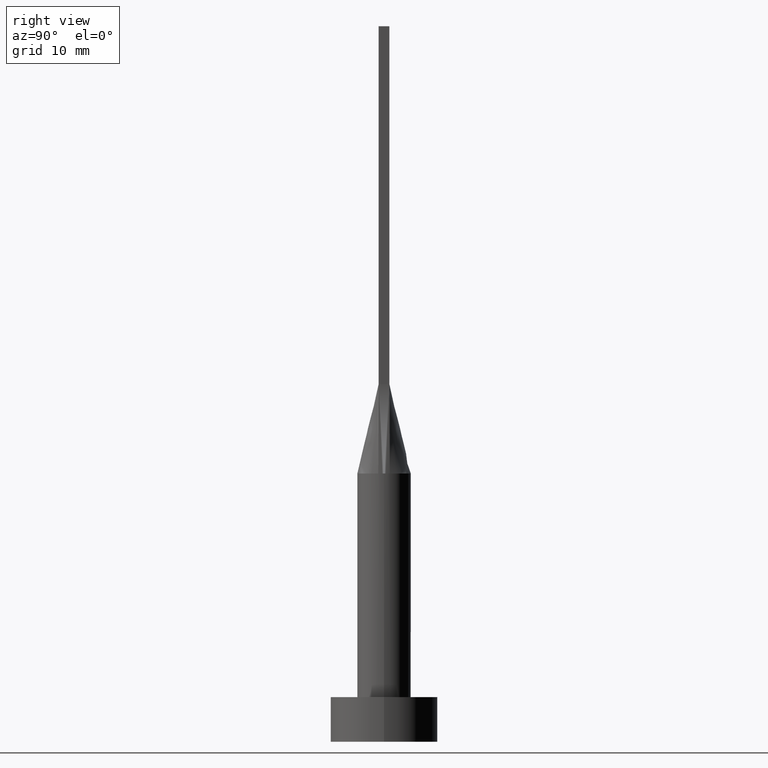
[diagram: clean part render]
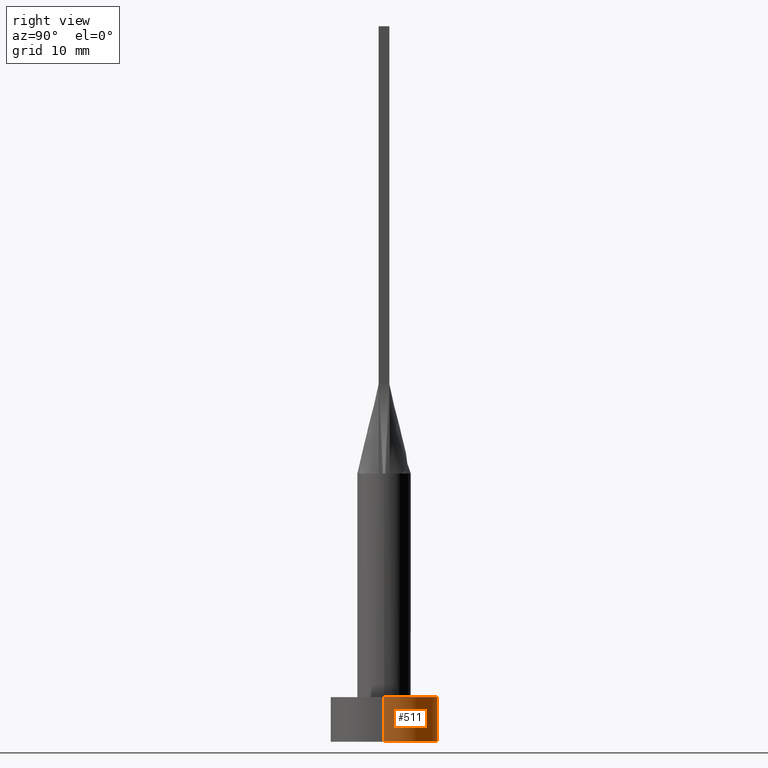
[diagram: same view with one face highlighted and labeled with its STEP entity id]
A machine part, right view. The second image highlights one B-rep face of the part: STEP entity #511.
In plain terms, the highlighted cylindrical surface (partial cylindrical patch) has radius 6 mm, axis along (-0, -0, -1).
Its self-contained STEP definition (entity closure, byte-faithful):
#25 = FACE_OUTER_BOUND ( 'NONE', #454, .T. ) ;
#44 = ORIENTED_EDGE ( 'NONE', *, *, #199, .T. ) ;
#60 = EDGE_CURVE ( 'NONE', #362, #547, #564, .T. ) ;
#63 = DIRECTION ( 'NONE',  ( -0.000000000000000000, -0.000000000000000000, -1.000000000000000000 ) ) ;
#67 = CARTESIAN_POINT ( 'NONE',  ( -6.000000000000000888, 0.000000000000000000, 5.000000000000000000 ) ) ;
#83 = CIRCLE ( 'NONE', #343, 6.000000000000000888 ) ;
#110 = CYLINDRICAL_SURFACE ( 'NONE', #377, 6.000000000000000888 ) ;
#138 = CARTESIAN_POINT ( 'NONE',  ( 0.000000000000000000, 0.000000000000000000, 5.000000000000000000 ) ) ;
#144 = DIRECTION ( 'NONE',  ( 1.000000000000000000, 0.000000000000000000, 0.000000000000000000 ) ) ;
#157 = CARTESIAN_POINT ( 'NONE',  ( 6.000000000000000888, 7.347880794884120722E-16, 5.000000000000000000 ) ) ;
#159 = DIRECTION ( 'NONE',  ( 1.000000000000000000, 0.000000000000000000, 0.000000000000000000 ) ) ;
#171 = ORIENTED_EDGE ( 'NONE', *, *, #60, .F. ) ;
#199 = EDGE_CURVE ( 'NONE', #362, #552, #255, .T. ) ;
#202 = VERTEX_POINT ( 'NONE', #426 ) ;
#222 = CARTESIAN_POINT ( 'NONE',  ( -6.000000000000000888, 0.000000000000000000, 5.000000000000000000 ) ) ;
#243 = VECTOR ( 'NONE', #538, 1000.000000000000000 ) ;
#245 = CARTESIAN_POINT ( 'NONE',  ( 0.000000000000000000, 0.000000000000000000, 5.000000000000000000 ) ) ;
#255 = LINE ( 'NONE', #259, #479 ) ;
#259 = CARTESIAN_POINT ( 'NONE',  ( 6.000000000000000888, 7.347880794884120722E-16, 5.000000000000000000 ) ) ;
#270 = DIRECTION ( 'NONE',  ( 0.000000000000000000, 0.000000000000000000, 1.000000000000000000 ) ) ;
#289 = DIRECTION ( 'NONE',  ( -1.000000000000000000, 0.000000000000000000, 0.000000000000000000 ) ) ;
#325 = AXIS2_PLACEMENT_3D ( 'NONE', #138, #550, #144 ) ;
#343 = AXIS2_PLACEMENT_3D ( 'NONE', #535, #270, #159 ) ;
#345 = ORIENTED_EDGE ( 'NONE', *, *, #400, .F. ) ;
#362 = VERTEX_POINT ( 'NONE', #157 ) ;
#377 = AXIS2_PLACEMENT_3D ( 'NONE', #245, #63, #289 ) ;
#388 = CARTESIAN_POINT ( 'NONE',  ( 6.000000000000000888, 7.347880794884120722E-16, 0.000000000000000000 ) ) ;
#400 = EDGE_CURVE ( 'NONE', #547, #202, #443, .T. ) ;
#426 = CARTESIAN_POINT ( 'NONE',  ( -6.000000000000000888, 0.000000000000000000, 0.000000000000000000 ) ) ;
#437 = DIRECTION ( 'NONE',  ( -0.000000000000000000, -0.000000000000000000, -1.000000000000000000 ) ) ;
#443 = LINE ( 'NONE', #222, #243 ) ;
#454 = EDGE_LOOP ( 'NONE', ( #171, #44, #477, #345 ) ) ;
#477 = ORIENTED_EDGE ( 'NONE', *, *, #578, .T. ) ;
#479 = VECTOR ( 'NONE', #437, 1000.000000000000000 ) ;
#511 = ADVANCED_FACE ( 'NONE', ( #25 ), #110, .T. ) ;
#535 = CARTESIAN_POINT ( 'NONE',  ( 0.000000000000000000, 0.000000000000000000, 0.000000000000000000 ) ) ;
#538 = DIRECTION ( 'NONE',  ( -0.000000000000000000, -0.000000000000000000, -1.000000000000000000 ) ) ;
#547 = VERTEX_POINT ( 'NONE', #67 ) ;
#550 = DIRECTION ( 'NONE',  ( 0.000000000000000000, 0.000000000000000000, 1.000000000000000000 ) ) ;
#552 = VERTEX_POINT ( 'NONE', #388 ) ;
#564 = CIRCLE ( 'NONE', #325, 6.000000000000000888 ) ;
#578 = EDGE_CURVE ( 'NONE', #552, #202, #83, .T. ) ;